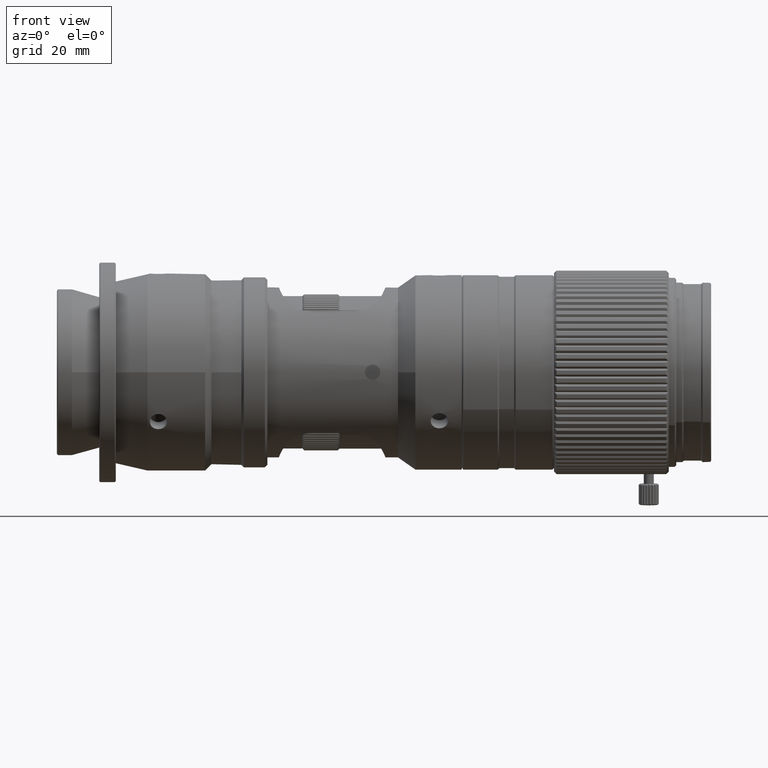
[diagram: clean part render]
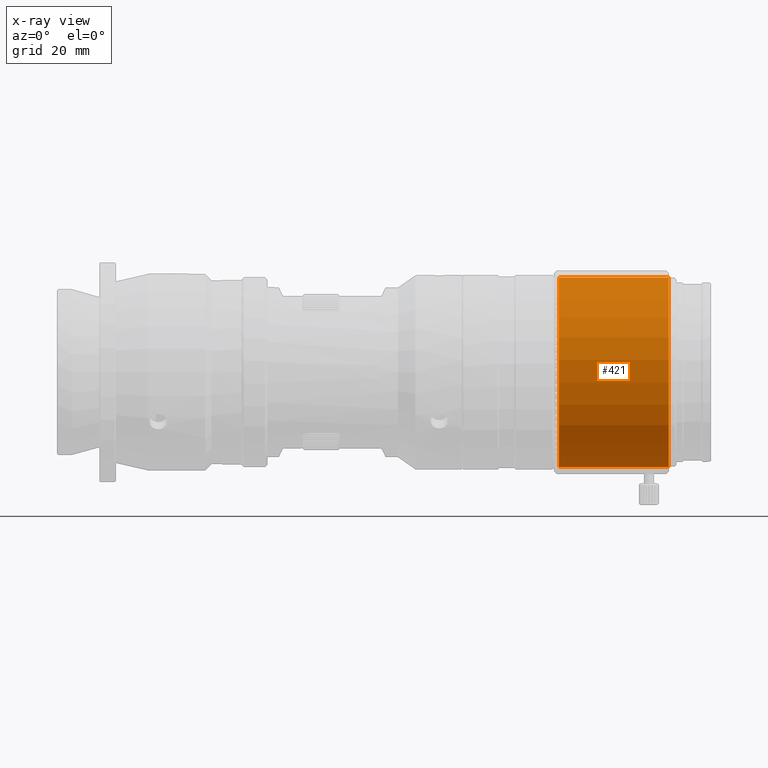
[diagram: x-ray — body ghosted, one internal face saturated and labeled with its STEP entity id]
A machine part, front view, then the same camera in x-ray: the body is ghosted and one INTERNAL B-rep face — a face not visible from any outside direction — is saturated and labeled: STEP entity #421.
In plain terms, the highlighted cylindrical surface (bore or boss wall) has radius 19 mm, axis along (-1, 0, -0).
Its self-contained STEP definition (entity closure, byte-faithful):
#93 = CARTESIAN_POINT ( 'NONE',  ( 115.9581265428925718, 26.11023935412955765, 15.71905592086952907 ) ) ;
#421 = ADVANCED_FACE ( 'NONE', ( #30488, #21913, #28039 ), #33275, .F. ) ;
#1601 = CARTESIAN_POINT ( 'NONE',  ( 112.1675571753414857, 26.61392763838241393, -3.274309040086496481 ) ) ;
#1777 = AXIS2_PLACEMENT_3D ( 'NONE', #16586, #8702, #3280 ) ;
#1784 = CARTESIAN_POINT ( 'NONE',  ( 112.7581974451550479, 27.49598150150015030, -3.230630277510789128 ) ) ;
#2467 = CARTESIAN_POINT ( 'NONE',  ( 111.3174222188343521, 26.90255844042452082, -3.264563811695365469 ) ) ;
#2872 = EDGE_CURVE ( 'NONE', #3505, #3505, #33102, .T. ) ;
#3280 = DIRECTION ( 'NONE',  ( 0.000000000000000000, -0.8303097482396867290, -0.5573021819248046294 ) ) ;
#3337 = DIRECTION ( 'NONE',  ( 0.000000000000000000, -0.8303097482396867290, -0.5573021819248046294 ) ) ;
#3505 = VERTEX_POINT ( 'NONE', #22958 ) ;
#4233 = CARTESIAN_POINT ( 'NONE',  ( 112.0638328607309404, 26.59310244107222942, -3.274807383873621358 ) ) ;
#4403 = CARTESIAN_POINT ( 'NONE',  ( 112.4500330046789713, 26.75368979455134166, -3.270188971908066122 ) ) ;
#4979 = CIRCLE ( 'NONE', #23990, 19.00000000000000355 ) ;
#5276 = EDGE_CURVE ( 'NONE', #12603, #12603, #23612, .T. ) ;
#5440 = CARTESIAN_POINT ( 'NONE',  ( 111.4662197993020527, 28.02970825134247690, -3.183882718886771990 ) ) ;
#5794 = CARTESIAN_POINT ( 'NONE',  ( 112.1695390754249928, 28.18945512258870778, -3.166834627055165274 ) ) ;
#5845 = ORIENTED_EDGE ( 'NONE', *, *, #5276, .F. ) ;
#7564 = CARTESIAN_POINT ( 'NONE',  ( 111.9581265428925576, 26.59310244107222942, -3.274807383873620914 ) ) ;
#8422 = CARTESIAN_POINT ( 'NONE',  ( 111.5549519171533746, 28.08884719528198914, -3.177682566006763576 ) ) ;
#8702 = DIRECTION ( 'NONE',  ( 1.000000000000000000, -3.500039099931485001E-16, 6.331476969426725005E-22 ) ) ;
#10283 = CARTESIAN_POINT ( 'NONE',  ( 115.9581265428925718, 10.33435413757550414, 5.130314464298239230 ) ) ;
#10352 = CARTESIAN_POINT ( 'NONE',  ( 111.5412512066456117, 26.67846598912949929, -3.273033728029419720 ) ) ;
#10523 = CARTESIAN_POINT ( 'NONE',  ( 111.2587899152564717, 26.99067939058797450, -3.260780997240683821 ) ) ;
#11039 = CARTESIAN_POINT ( 'NONE',  ( 112.5988307185664610, 27.88143844223944967, -3.198355146115019032 ) ) ;
#12469 = CARTESIAN_POINT ( 'NONE',  ( 112.7375126011063600, 27.60054439299700135, -3.222654007092209394 ) ) ;
#12562 = AXIS2_PLACEMENT_3D ( 'NONE', #22426, #30318, #3337 ) ;
#12603 = VERTEX_POINT ( 'NONE', #20671 ) ;
#14375 = EDGE_LOOP ( 'NONE', ( #21398 ) ) ;
#15014 = EDGE_LOOP ( 'NONE', ( #5845 ) ) ;
#15103 = CARTESIAN_POINT ( 'NONE',  ( 112.6714005412791408, 26.97500565397761463, -3.261828661132511797 ) ) ;
#15129 = ORIENTED_EDGE ( 'NONE', *, *, #2872, .F. ) ;
#16471 = CARTESIAN_POINT ( 'NONE',  ( 111.9581265428925576, 26.59310244107222942, -3.274807383873620914 ) ) ;
#16586 = CARTESIAN_POINT ( 'NONE',  ( 93.95812654279319531, 26.11023935412956476, 15.71905592086952907 ) ) ;
#19113 = CARTESIAN_POINT ( 'NONE',  ( 111.7486954083671691, 28.16875235101131736, -3.169145122960198790 ) ) ;
#20671 = CARTESIAN_POINT ( 'NONE',  ( 111.9581265428925718, 26.59310244107222942, -3.274807383873621358 ) ) ;
#21398 = ORIENTED_EDGE ( 'NONE', *, *, #23533, .F. ) ;
#21399 = CARTESIAN_POINT ( 'NONE',  ( 111.8524202766269866, 28.18945512258881791, -3.166834627055145734 ) ) ;
#21913 = FACE_OUTER_BOUND ( 'NONE', #33456, .T. ) ;
#22426 = CARTESIAN_POINT ( 'NONE',  ( 84.93966043552740075, 26.11023935412956831, 15.71905592086952907 ) ) ;
#22958 = CARTESIAN_POINT ( 'NONE',  ( 93.95812654279319531, 10.33435413757551480, 5.130314464298239230 ) ) ;
#22991 = CARTESIAN_POINT ( 'NONE',  ( 112.3613008199897649, 26.69425459604104134, -3.272008836667914977 ) ) ;
#23087 = VERTEX_POINT ( 'NONE', #10283 ) ;
#23533 = EDGE_CURVE ( 'NONE', #23087, #23087, #4979, .T. ) ;
#23612 = B_SPLINE_CURVE_WITH_KNOTS ( 'NONE', 3,
 ( #7564, #4233, #1601, #22991, #4403, #15103, #25795, #1784, #12469, #28595, #11039, #29444, #5794, #21399, #19113, #8422, #5440, #32415, #23845, #26479, #29109, #10523, #2467, #10352, #26828, #16471 ),
 .UNSPECIFIED., .T., .F.,
 ( 4, 2, 2, 2, 2, 2, 2, 2, 2, 2, 2, 2, 4 ),
 ( 0.000000000000000000, 0.0003126152225474485968, 0.0006252304450948971935, 0.001250460890189831033, 0.001563076112737297844, 0.001875691335284764873, 0.002500921780379698495, 0.002813537002927165090, 0.003126152225474632552, 0.003751382670569544490, 0.004063997893117000243, 0.004376613115664455995, 0.005001843560759403930 ),
 .UNSPECIFIED. ) ;
#23845 = CARTESIAN_POINT ( 'NONE',  ( 111.1582689042926120, 27.60117755849236332, -3.223506115259901161 ) ) ;
#23919 = DIRECTION ( 'NONE',  ( 0.000000000000000000, -0.8303097482396867290, -0.5573021819248046294 ) ) ;
#23990 = AXIS2_PLACEMENT_3D ( 'NONE', #93, #29350, #23919 ) ;
#25795 = CARTESIAN_POINT ( 'NONE',  ( 112.7579841814233674, 27.18365321361120479, -3.251746274889385724 ) ) ;
#26479 = CARTESIAN_POINT ( 'NONE',  ( 111.1580556406647702, 27.28885063491245333, -3.244640020435568761 ) ) ;
#26828 = CARTESIAN_POINT ( 'NONE',  ( 111.7467139072157778, 26.59310244107222587, -3.274807383873620026 ) ) ;
#28039 = FACE_BOUND ( 'NONE', #15014, .T. ) ;
#28595 = CARTESIAN_POINT ( 'NONE',  ( 112.6574630730197697, 27.79361067905104221, -3.206473004007314831 ) ) ;
#29109 = CARTESIAN_POINT ( 'NONE',  ( 111.1787404650231394, 27.18416607047815958, -3.250816653920503008 ) ) ;
#29350 = DIRECTION ( 'NONE',  ( -1.000000000000000000, 3.500039099931485001E-16, -6.331476969426725005E-22 ) ) ;
#29444 = CARTESIAN_POINT ( 'NONE',  ( 112.3750015206927770, 28.10463046235541640, -3.176572008770501387 ) ) ;
#30318 = DIRECTION ( 'NONE',  ( -1.000000000000000000, 3.500039099931485001E-16, -6.331476969426725005E-22 ) ) ;
#30488 = FACE_OUTER_BOUND ( 'NONE', #14375, .T. ) ;
#32415 = CARTESIAN_POINT ( 'NONE',  ( 111.2448524601053919, 27.80928235833676254, -3.205400560966149559 ) ) ;
#33102 = CIRCLE ( 'NONE', #1777, 19.00000000000000355 ) ;
#33275 = CYLINDRICAL_SURFACE ( 'NONE', #12562, 19.00000000000000355 ) ;
#33456 = EDGE_LOOP ( 'NONE', ( #15129 ) ) ;